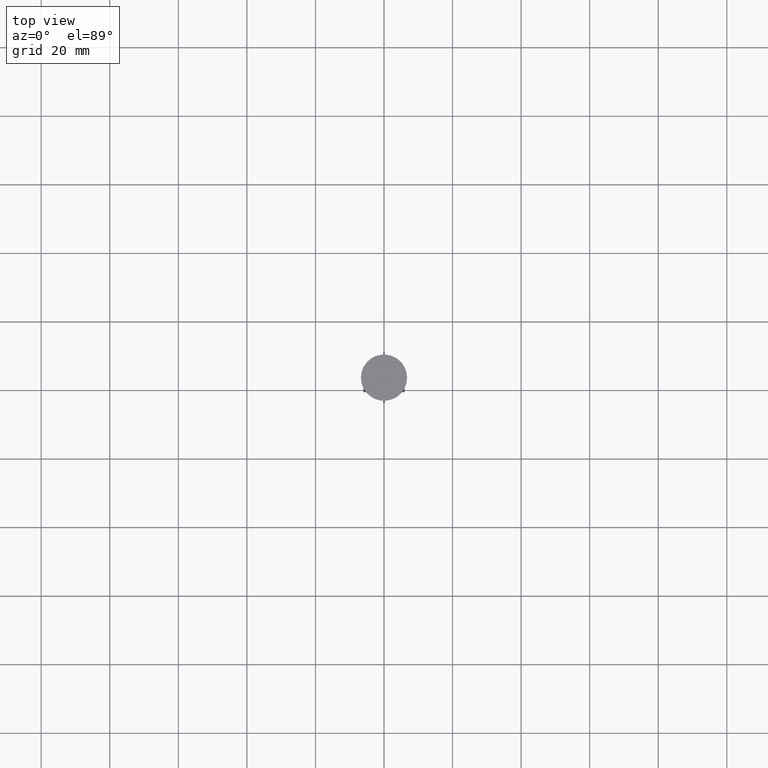
[diagram: clean part render]
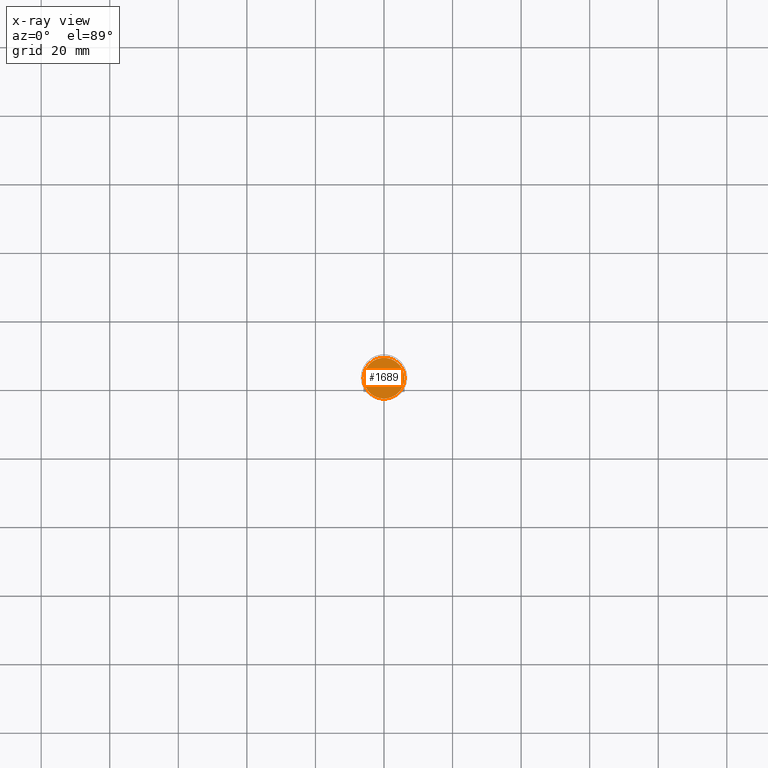
[diagram: x-ray — body ghosted, one internal face saturated and labeled with its STEP entity id]
A machine part, top view, then the same camera in x-ray: the body is ghosted and one INTERNAL B-rep face — a face not visible from any outside direction — is saturated and labeled: STEP entity #1689.
In plain terms, the highlighted planar face has unit normal (0, 0, -1).
Its self-contained STEP definition (entity closure, byte-faithful):
#75 = CARTESIAN_POINT ( 'NONE',  ( 0.000000000000000000, 0.000000000000000000, -10.50000000000000178 ) ) ;
#374 = AXIS2_PLACEMENT_3D ( 'NONE', #1999, #1314, #1150 ) ;
#474 = EDGE_CURVE ( 'NONE', #2142, #2185, #2318, .T. ) ;
#576 = FACE_OUTER_BOUND ( 'NONE', #871, .T. ) ;
#719 = CARTESIAN_POINT ( 'NONE',  ( 0.000000000000000000, 0.000000000000000000, -10.50000000000000178 ) ) ;
#868 = DIRECTION ( 'NONE',  ( -1.000000000000000000, 0.000000000000000000, 0.000000000000000000 ) ) ;
#871 = EDGE_LOOP ( 'NONE', ( #1639, #1052 ) ) ;
#995 = CARTESIAN_POINT ( 'NONE',  ( -5.950000000000002842, 0.000000000000000000, -10.50000000000000178 ) ) ;
#1052 = ORIENTED_EDGE ( 'NONE', *, *, #1935, .T. ) ;
#1150 = DIRECTION ( 'NONE',  ( -1.000000000000000000, 0.000000000000000000, -0.000000000000000000 ) ) ;
#1306 = AXIS2_PLACEMENT_3D ( 'NONE', #75, #1859, #1323 ) ;
#1314 = DIRECTION ( 'NONE',  ( 0.000000000000000000, 0.000000000000000000, -1.000000000000000000 ) ) ;
#1323 = DIRECTION ( 'NONE',  ( -1.000000000000000000, 0.000000000000000000, 0.000000000000000000 ) ) ;
#1338 = AXIS2_PLACEMENT_3D ( 'NONE', #719, #1457, #868 ) ;
#1457 = DIRECTION ( 'NONE',  ( -0.000000000000000000, -0.000000000000000000, 1.000000000000000000 ) ) ;
#1639 = ORIENTED_EDGE ( 'NONE', *, *, #474, .T. ) ;
#1689 = ADVANCED_FACE ( 'NONE', ( #576 ), #2225, .F. ) ;
#1713 = CIRCLE ( 'NONE', #1338, 5.950000000000002842 ) ;
#1859 = DIRECTION ( 'NONE',  ( -0.000000000000000000, -0.000000000000000000, 1.000000000000000000 ) ) ;
#1935 = EDGE_CURVE ( 'NONE', #2185, #2142, #1713, .T. ) ;
#1999 = CARTESIAN_POINT ( 'NONE',  ( 0.000000000000000000, 0.000000000000000000, -10.50000000000000178 ) ) ;
#2142 = VERTEX_POINT ( 'NONE', #995 ) ;
#2185 = VERTEX_POINT ( 'NONE', #2276 ) ;
#2225 = PLANE ( 'NONE',  #374 ) ;
#2276 = CARTESIAN_POINT ( 'NONE',  ( 5.950000000000002842, 7.470345474798858237E-16, -10.50000000000000178 ) ) ;
#2318 = CIRCLE ( 'NONE', #1306, 5.950000000000002842 ) ;